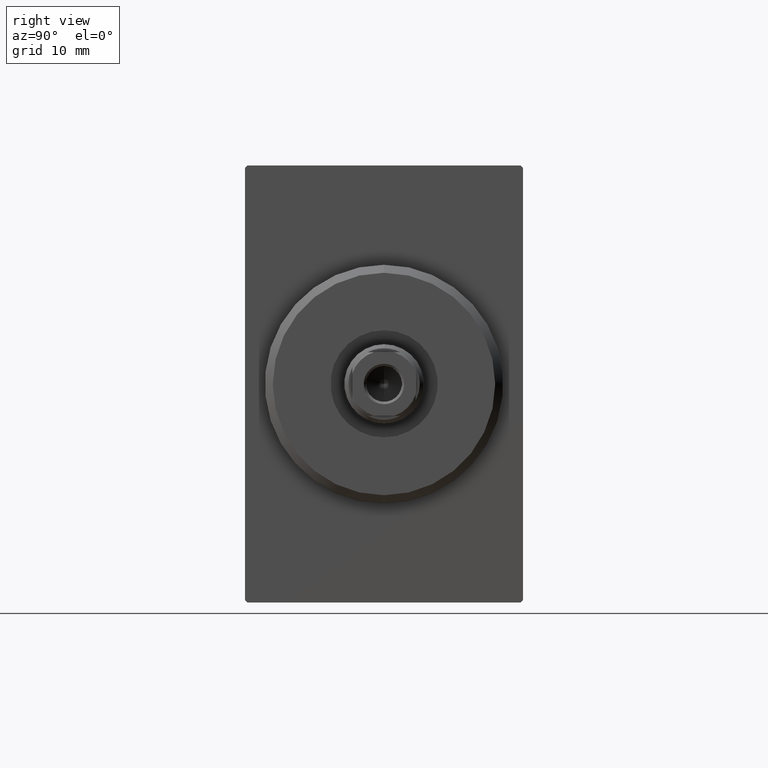
[diagram: clean part render]
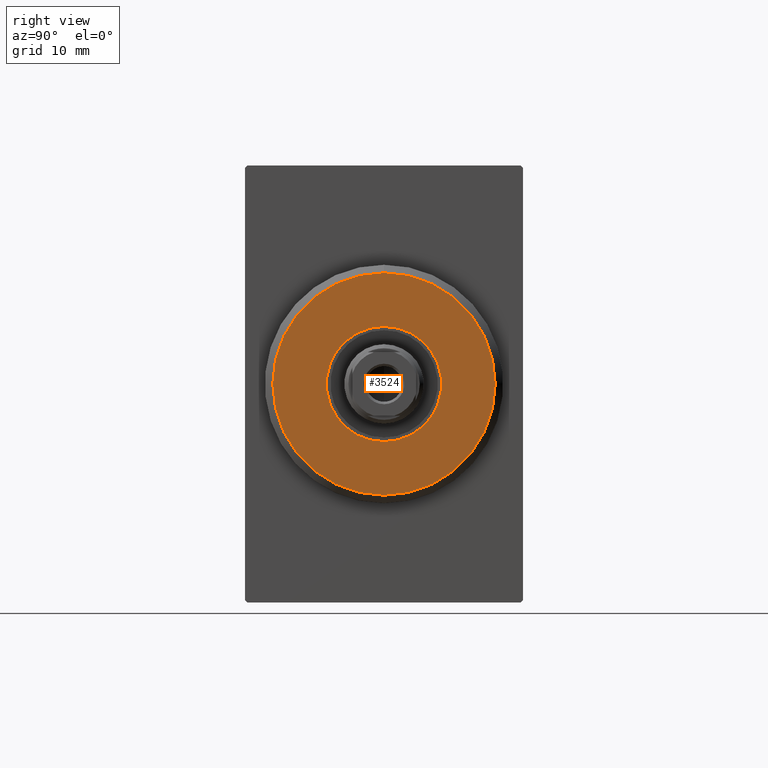
[diagram: same view with one face highlighted and labeled with its STEP entity id]
A machine part, right view. The second image highlights one B-rep face of the part: STEP entity #3524.
In plain terms, the highlighted planar face has unit normal (1, 0, 0).
Its self-contained STEP definition (entity closure, byte-faithful):
#353 = CARTESIAN_POINT ( 'NONE',  ( 3.000000000000000000, 0.000000000000000000, 0.000000000000000000 ) ) ;
#1153 = AXIS2_PLACEMENT_3D ( 'NONE', #10144, #3419, #19697 ) ;
#1374 = ORIENTED_EDGE ( 'NONE', *, *, #19107, .F. ) ;
#1590 = EDGE_CURVE ( 'NONE', #34633, #4523, #28622, .T. ) ;
#1687 = DIRECTION ( 'NONE',  ( 1.000000000000000000, 0.000000000000000000, 0.000000000000000000 ) ) ;
#2697 = CIRCLE ( 'NONE', #42950, 13.99999999999998934 ) ;
#3045 = DIRECTION ( 'NONE',  ( 1.000000000000000000, -0.000000000000000000, 0.000000000000000000 ) ) ;
#3419 = DIRECTION ( 'NONE',  ( 1.000000000000000000, -0.000000000000000000, 0.000000000000000000 ) ) ;
#3470 = CARTESIAN_POINT ( 'NONE',  ( 3.000000000000000000, 0.000000000000000000, 0.000000000000000000 ) ) ;
#3524 = ADVANCED_FACE ( 'NONE', ( #29541, #33242 ), #29119, .T. ) ;
#3814 = CARTESIAN_POINT ( 'NONE',  ( 3.000000000000000000, 0.000000000000000000, -7.249999999999999112 ) ) ;
#4523 = VERTEX_POINT ( 'NONE', #34993 ) ;
#6804 = ORIENTED_EDGE ( 'NONE', *, *, #23621, .T. ) ;
#7776 = DIRECTION ( 'NONE',  ( 0.000000000000000000, 0.000000000000000000, -1.000000000000000000 ) ) ;
#10144 = CARTESIAN_POINT ( 'NONE',  ( 3.000000000000000000, 0.000000000000000000, 0.000000000000000000 ) ) ;
#10515 = ORIENTED_EDGE ( 'NONE', *, *, #36192, .T. ) ;
#12207 = CIRCLE ( 'NONE', #1153, 13.99999999999998934 ) ;
#15451 = EDGE_LOOP ( 'NONE', ( #6804, #10515 ) ) ;
#15952 = VERTEX_POINT ( 'NONE', #38641 ) ;
#16161 = AXIS2_PLACEMENT_3D ( 'NONE', #3470, #3045, #25847 ) ;
#16637 = CARTESIAN_POINT ( 'NONE',  ( 3.000000000000000000, 0.000000000000000000, 0.000000000000000000 ) ) ;
#19107 = EDGE_CURVE ( 'NONE', #4523, #34633, #24775, .T. ) ;
#19697 = DIRECTION ( 'NONE',  ( 0.000000000000000000, 0.000000000000000000, -1.000000000000000000 ) ) ;
#20322 = DIRECTION ( 'NONE',  ( 0.000000000000000000, 0.000000000000000000, -1.000000000000000000 ) ) ;
#20747 = DIRECTION ( 'NONE',  ( 1.000000000000000000, -0.000000000000000000, 0.000000000000000000 ) ) ;
#23386 = DIRECTION ( 'NONE',  ( 1.000000000000000000, 0.000000000000000000, 0.000000000000000000 ) ) ;
#23621 = EDGE_CURVE ( 'NONE', #32177, #15952, #2697, .T. ) ;
#24082 = AXIS2_PLACEMENT_3D ( 'NONE', #24707, #1687, #7776 ) ;
#24707 = CARTESIAN_POINT ( 'NONE',  ( 3.000000000000000000, 0.000000000000000000, 0.000000000000000000 ) ) ;
#24775 = CIRCLE ( 'NONE', #24082, 7.249999999999999112 ) ;
#25258 = EDGE_LOOP ( 'NONE', ( #36605, #1374 ) ) ;
#25847 = DIRECTION ( 'NONE',  ( 0.000000000000000000, 0.000000000000000000, -1.000000000000000000 ) ) ;
#28622 = CIRCLE ( 'NONE', #33486, 7.249999999999999112 ) ;
#29119 = PLANE ( 'NONE',  #16161 ) ;
#29541 = FACE_OUTER_BOUND ( 'NONE', #15451, .T. ) ;
#32177 = VERTEX_POINT ( 'NONE', #39748 ) ;
#33242 = FACE_BOUND ( 'NONE', #25258, .T. ) ;
#33486 = AXIS2_PLACEMENT_3D ( 'NONE', #16637, #23386, #20322 ) ;
#34024 = DIRECTION ( 'NONE',  ( 0.000000000000000000, 0.000000000000000000, -1.000000000000000000 ) ) ;
#34633 = VERTEX_POINT ( 'NONE', #3814 ) ;
#34993 = CARTESIAN_POINT ( 'NONE',  ( 3.000000000000000000, 8.878689293818310074E-16, 7.249999999999999112 ) ) ;
#36192 = EDGE_CURVE ( 'NONE', #15952, #32177, #12207, .T. ) ;
#36605 = ORIENTED_EDGE ( 'NONE', *, *, #1590, .F. ) ;
#38641 = CARTESIAN_POINT ( 'NONE',  ( 3.000000000000000000, 1.775737858763661226E-15, -13.99999999999998934 ) ) ;
#39748 = CARTESIAN_POINT ( 'NONE',  ( 3.000000000000000000, 0.000000000000000000, 13.99999999999998934 ) ) ;
#42950 = AXIS2_PLACEMENT_3D ( 'NONE', #353, #20747, #34024 ) ;